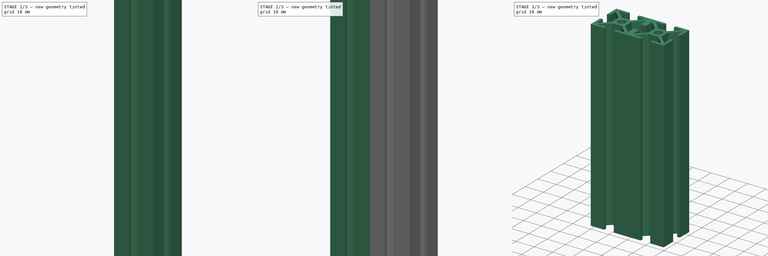
[diagram: build sequence overview — one tinted view per stage of 3, left to right]
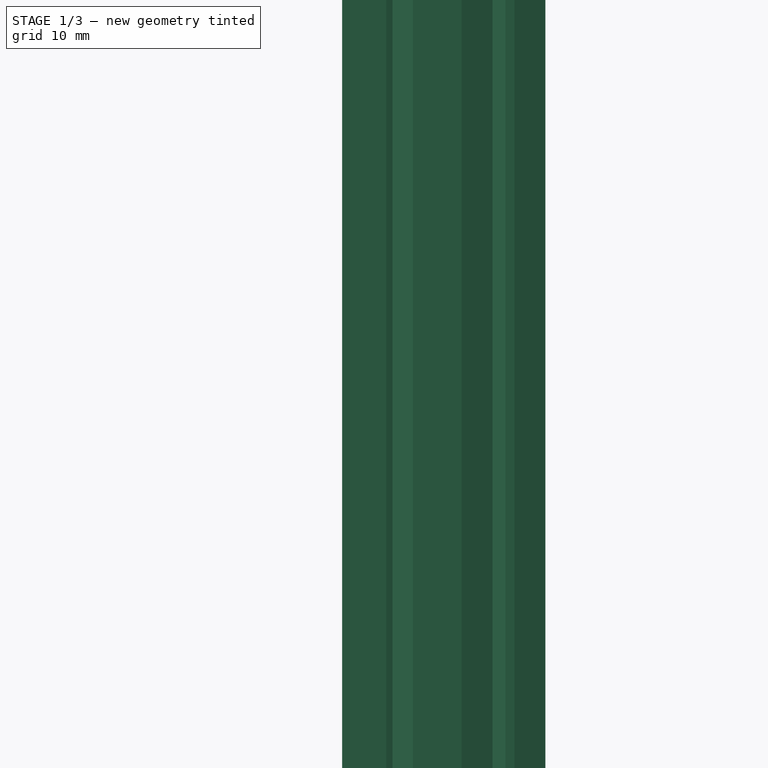
[diagram: stage 1 of 3 — iso view after this stage's code; geometry added in this stage tinted green]
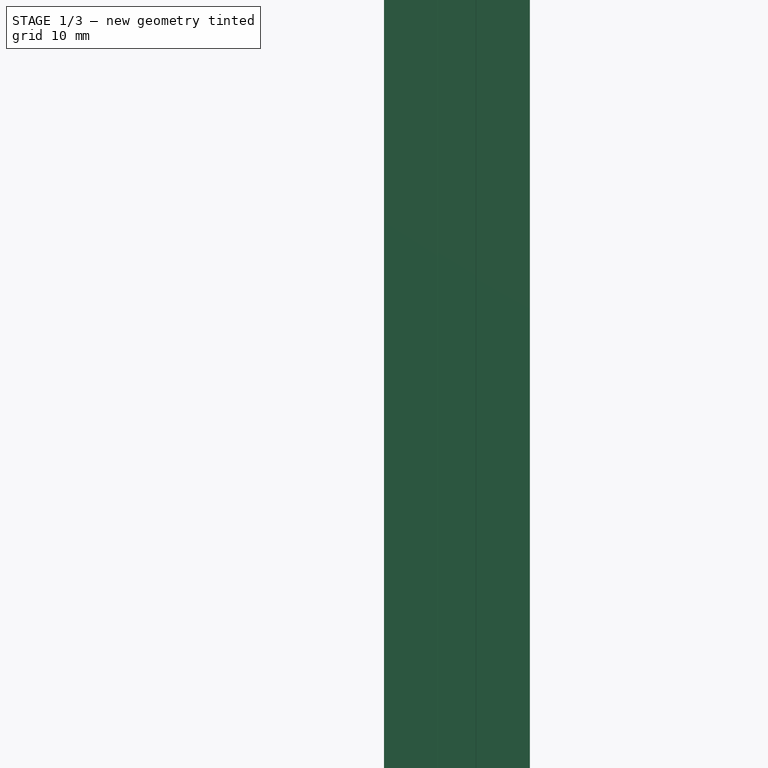
[diagram: stage 1 of 3 — front view after this stage's code; geometry added in this stage tinted green]
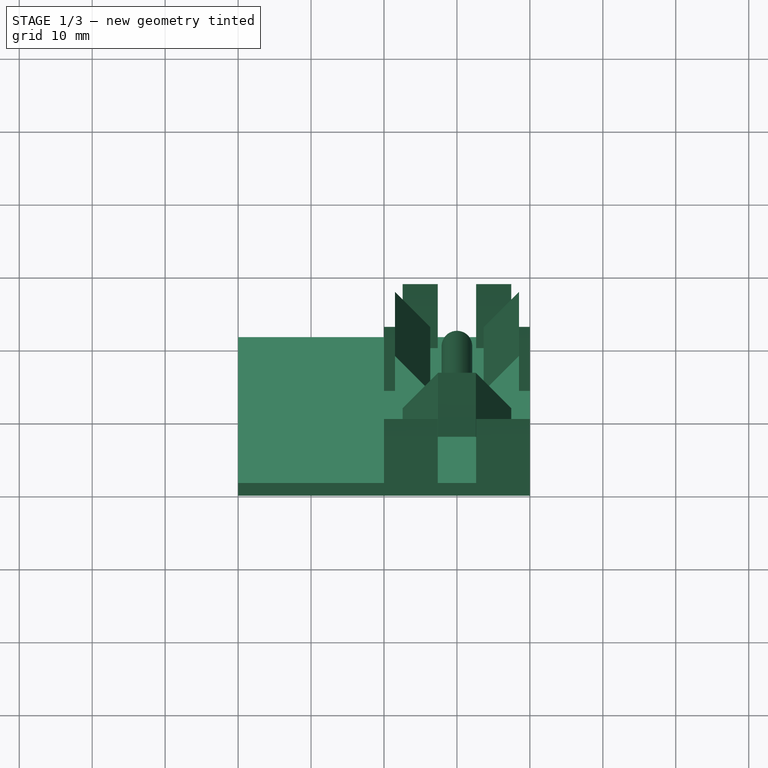
[diagram: stage 1 of 3 — top view after this stage's code; geometry added in this stage tinted green]
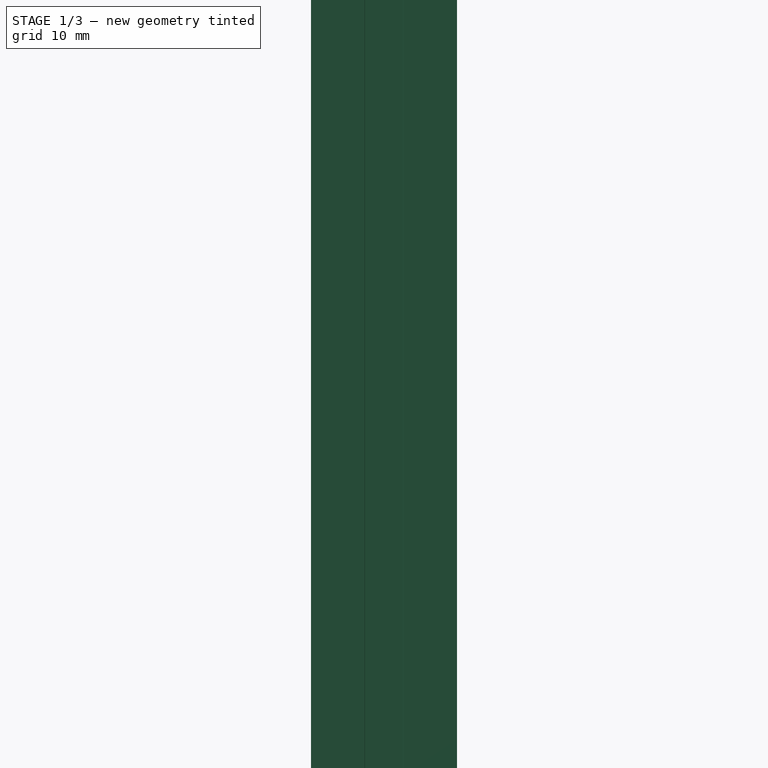
[diagram: stage 1 of 3 — right view after this stage's code; geometry added in this stage tinted green]
FCSTD DOCUMENT  (FreeCAD 0.15R4671 (Git))
Label: 20series-1x2_100mm
License: All rights reserved
LicenseURL: http://en.wikipedia.org/wiki/All_rights_reserved
objects: App::FeaturePython×3, Part::Extrusion×2, Sketcher::SketchObject×1, Part::Fuse×1, Part::Box×1, Part::MultiCommon×1
note: 6 computed .brp shape members not serialized (recipe doc carries the construction recipe); baked Part::Feature solids carry a one-line shape summary decoded from their .brp

FEATURE [App::FeaturePython] planeConstraint  # a2plus constraint (typed FeaturePython)
  Object1 = Extrude001
  Object2 = Extrude
  SubElement1 = Face39
  SubElement2 = Face39
  Type = plane
  directionConstraint = 0
  offset = 0
FEATURE [App::FeaturePython] planeConstraint001  # a2plus constraint (typed FeaturePython)
  Object1 = Extrude001
  Object2 = Extrude
  SubElement1 = Face33
  SubElement2 = Face23
  Type = plane
  directionConstraint = 0
  offset = 0
FEATURE [App::FeaturePython] planeConstraint002  # a2plus constraint (typed FeaturePython)
  Object1 = Extrude
  Object2 = Extrude001
  SubElement1 = Face24
  SubElement2 = Face32
  Type = plane
  directionConstraint = 0
  offset = 0
FEATURE [Part::Extrusion] Extrude001
  Base = -> Sketch
  Dir = (0,0,610)
  Placement = pos=(20,0,0) rot=(0,0,1;0rad)
  Solid = true
FEATURE [Part::Box] Box  label="Cube"
  Height = 100
  Length = 40
  Width = 20
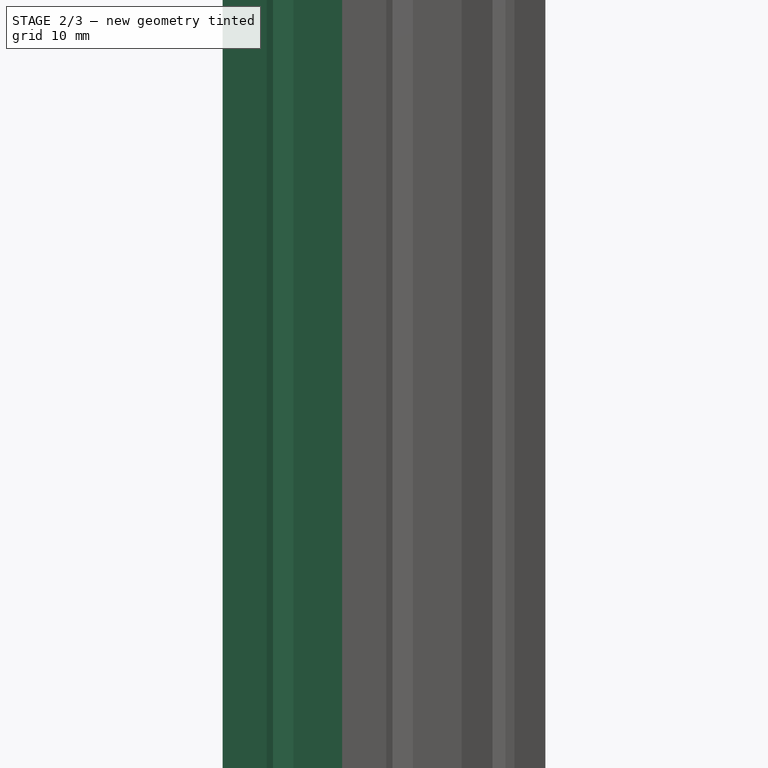
[diagram: stage 2 of 3 — iso view after this stage's code; geometry added in this stage tinted green]
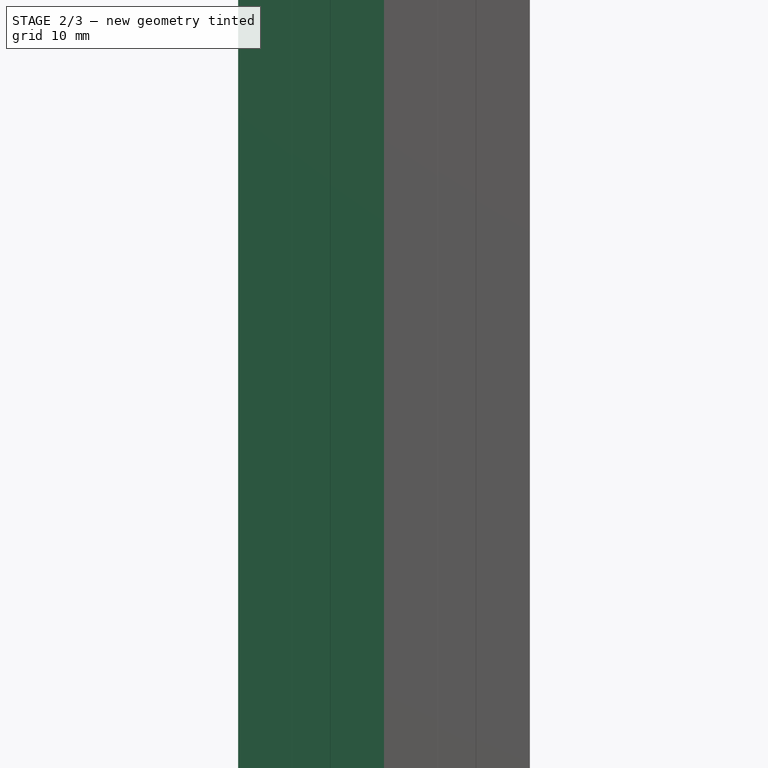
[diagram: stage 2 of 3 — front view after this stage's code; geometry added in this stage tinted green]
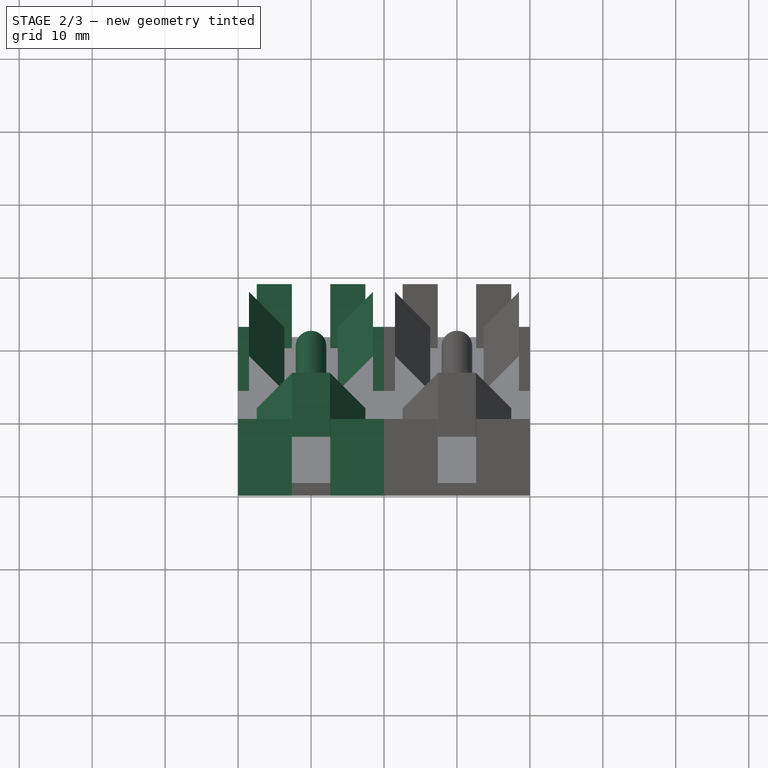
[diagram: stage 2 of 3 — top view after this stage's code; geometry added in this stage tinted green]
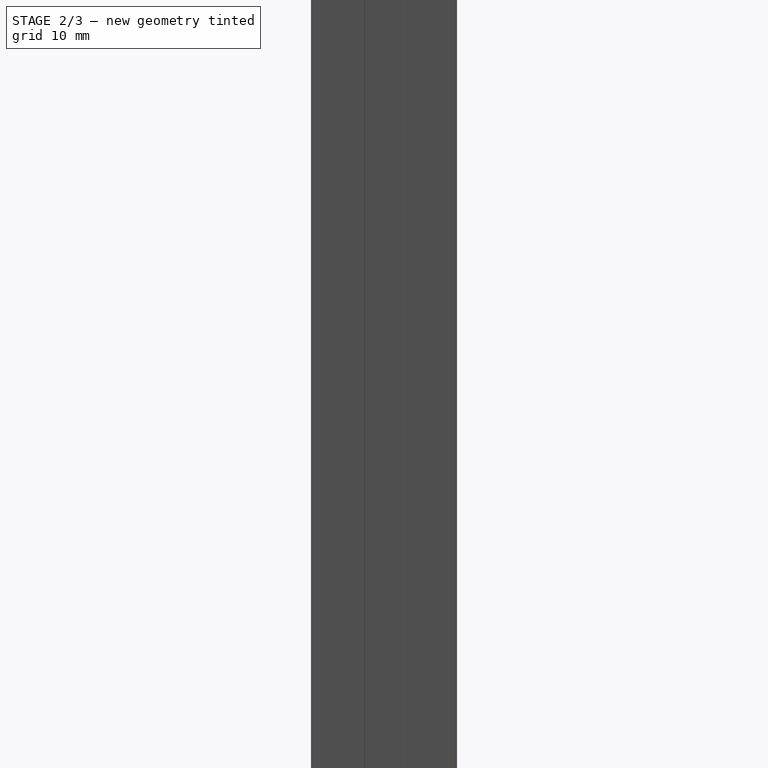
[diagram: stage 2 of 3 — right view after this stage's code; geometry added in this stage tinted green]
FEATURE [Sketcher::SketchObject] Sketch  label="20seriesProfile"
  sketch-geometry (93):
    g0: LineSegment [constr] StartX=0 StartY=0 StartZ=0 EndX=20 EndY=0 EndZ=0
    g1: LineSegment [constr] StartX=20 StartY=0 StartZ=0 EndX=20 EndY=20 EndZ=0
    g2: LineSegment [constr] StartX=20 StartY=20 StartZ=0 EndX=0 EndY=20 EndZ=0
    g3: LineSegment [constr] StartX=0 StartY=20 StartZ=0 EndX=0 EndY=0 EndZ=0
    g4: LineSegment [constr] StartX=0 StartY=0 StartZ=0 EndX=20 EndY=20 EndZ=0
    g5: LineSegment [constr] StartX=0 StartY=20 StartZ=0 EndX=20 EndY=0 EndZ=0
    g6: GeomPoint [constr] X=0 Y=10 Z=0
    g7: GeomPoint [constr] X=20 Y=10 Z=0
    g8: GeomPoint [constr] X=10 Y=20 Z=0
    g9: GeomPoint [constr] X=10 Y=0 Z=0
    g10: LineSegment [constr] StartX=0 StartY=10 StartZ=0 EndX=20 EndY=10 EndZ=0
    g11: LineSegment [constr] StartX=10 StartY=20 StartZ=0 EndX=10 EndY=0 EndZ=0
    g12: GeomPoint [constr] X=10 Y=10 Z=0
    g13: Circle CenterX=10 CenterY=10 CenterZ=0 NormalX=0 NormalY=0 NormalZ=1 Radius=2.095
    g14: LineSegment StartX=6.34 StartY=6.34 StartZ=0 EndX=13.66 EndY=6.34 EndZ=0
    g15: LineSegment StartX=13.66 StartY=6.34 StartZ=0 EndX=13.66 EndY=13.66 EndZ=0
    g16: LineSegment StartX=13.66 StartY=13.66 StartZ=0 EndX=6.34 EndY=13.66 EndZ=0
    g17: LineSegment StartX=6.34 StartY=13.66 StartZ=0 EndX=6.34 EndY=6.34 EndZ=0
    g18: LineSegment [constr] StartX=1.5 StartY=1.5 StartZ=0 EndX=18.5 EndY=1.5 EndZ=0
    g19: LineSegment [constr] StartX=18.5 StartY=1.5 StartZ=0 EndX=18.5 EndY=18.5 EndZ=0
    g20: LineSegment [constr] StartX=18.5 StartY=18.5 StartZ=0 EndX=1.5 EndY=18.5 EndZ=0
    g21: LineSegment [constr] StartX=1.5 StartY=18.5 StartZ=0 EndX=1.5 EndY=1.5 EndZ=0
    g22: LineSegment [constr] StartX=1.5 StartY=1.5 StartZ=0 EndX=0 EndY=1.5 EndZ=0
    g23: LineSegment [constr] StartX=2.56066 StartY=1.5 StartZ=0 EndX=7.40066 EndY=6.34 EndZ=0
    g24: LineSegment [constr] StartX=6.34 StartY=7.40066 StartZ=0 EndX=1.5 EndY=2.56066 EndZ=0
    g25: LineSegment [constr] StartX=1.5 StartY=2.56066 StartZ=0 EndX=2.56066 EndY=1.5 EndZ=0
    g26: LineSegment [constr] StartX=17.4393 StartY=1.5 StartZ=0 EndX=12.5993 EndY=6.34 EndZ=0
    g27: LineSegment [constr] StartX=13.66 StartY=7.40066 StartZ=0 EndX=18.5 EndY=2.56066 EndZ=0
    g28: LineSegment [constr] StartX=2.56066 StartY=18.5 StartZ=0 EndX=7.40066 EndY=13.66 EndZ=0
    g29: LineSegment [constr] StartX=1.5 StartY=17.4393 StartZ=0 EndX=6.34 EndY=12.5993 EndZ=0
    g30: LineSegment [constr] StartX=2.56066 StartY=18.5 StartZ=0 EndX=1.5 EndY=17.4393 EndZ=0
    g31: LineSegment [constr] StartX=18.5 StartY=2.56066 StartZ=0 EndX=17.4393 EndY=1.5 EndZ=0
    g32: LineSegment [constr] StartX=17.4393 StartY=18.5 StartZ=0 EndX=12.5993 EndY=13.66 EndZ=0
    g33: LineSegment [constr] StartX=13.66 StartY=12.5993 StartZ=0 EndX=18.5 EndY=17.4393 EndZ=0
    g34: LineSegment [constr] StartX=18.5 StartY=17.4393 StartZ=0 EndX=17.4393 EndY=18.5 EndZ=0
    g35: LineSegment [constr] StartX=0 StartY=7.37 StartZ=0 EndX=1.5 EndY=7.37 EndZ=0
    g36: LineSegment [constr] StartX=1.5 StartY=12.63 StartZ=0 EndX=0 EndY=12.63 EndZ=0
    g37: LineSegment [constr] StartX=0.75 StartY=12.63 StartZ=0 EndX=0.75 EndY=7.37 EndZ=0
    g38: GeomPoint [constr] X=0.75 Y=10 Z=0
    g39: LineSegment [constr] StartX=18.5 StartY=12.63 StartZ=0 EndX=20 EndY=12.63 EndZ=0
    g40: LineSegment [constr] StartX=18.5 StartY=7.37 StartZ=0 EndX=20 EndY=7.37 EndZ=0
    g41: LineSegment [constr] StartX=7.37 StartY=1.5 StartZ=0 EndX=7.37 EndY=0 EndZ=0
    g42: LineSegment [constr] StartX=12.63 StartY=1.5 StartZ=0 EndX=12.63 EndY=0 EndZ=0
    g43: LineSegment [constr] StartX=7.37 StartY=0.75 StartZ=0 EndX=12.63 EndY=0.75 EndZ=0
    g44: LineSegment [constr] StartX=7.37 StartY=20 StartZ=0 EndX=7.37 EndY=18.5 EndZ=0
    g45: LineSegment [constr] StartX=12.63 StartY=20 StartZ=0 EndX=12.63 EndY=18.5 EndZ=0
    g46: GeomPoint [constr] X=7.37 Y=19.25 Z=0
    g47: LineSegment [constr] StartX=7.37 StartY=19.25 StartZ=0 EndX=12.63 EndY=19.25 EndZ=0
    g48: GeomPoint [constr] X=19.25 Y=12.63 Z=0
    g49: LineSegment [constr] StartX=19.25 StartY=12.63 StartZ=0 EndX=19.25 EndY=7.37 EndZ=0
    g50: GeomPoint [constr] X=19.25 Y=10 Z=0
    g51: GeomPoint [constr] X=10 Y=19.25 Z=0
    g52: GeomPoint [constr] X=10 Y=0.75 Z=0
    g53: LineSegment StartX=0 StartY=7.37 StartZ=0 EndX=0 EndY=0 EndZ=0
    g54: LineSegment StartX=0 StartY=0 StartZ=0 EndX=7.37 EndY=0 EndZ=0
    g55: LineSegment StartX=7.37 StartY=0 StartZ=0 EndX=7.37 EndY=1.5 EndZ=0
    g56: LineSegment StartX=7.37 StartY=1.5 StartZ=0 EndX=2.56066 EndY=1.5 EndZ=0
    g57: LineSegment StartX=2.56066 StartY=1.5 StartZ=0 EndX=7.40066 EndY=6.34 EndZ=0
    g58: LineSegment StartX=7.40066 StartY=6.34 StartZ=0 EndX=6.34 EndY=6.34 EndZ=0
    g59: LineSegment StartX=6.34 StartY=6.34 StartZ=0 EndX=6.34 EndY=7.40066 EndZ=0
    g60: LineSegment StartX=6.34 StartY=7.40066 StartZ=0 EndX=1.5 EndY=2.56066 EndZ=0
    g61: LineSegment StartX=1.5 StartY=2.56066 StartZ=0 EndX=1.5 EndY=7.37 EndZ=0
    g62: LineSegment StartX=1.5 StartY=7.37 StartZ=0 EndX=0 EndY=7.37 EndZ=0
    g63: LineSegment StartX=20 StartY=7.37 StartZ=0 EndX=20 EndY=0 EndZ=0
    g64: LineSegment StartX=20 StartY=0 StartZ=0 EndX=12.63 EndY=0 EndZ=0
    g65: LineSegment StartX=12.63 StartY=0 StartZ=0 EndX=12.63 EndY=1.5 EndZ=0
    g66: LineSegment StartX=12.63 StartY=1.5 StartZ=0 EndX=17.4393 EndY=1.5 EndZ=0
    g67: LineSegment StartX=17.4393 StartY=1.5 StartZ=0 EndX=12.5993 EndY=6.34 EndZ=0
    g68: LineSegment StartX=12.5993 StartY=6.34 StartZ=0 EndX=13.66 EndY=6.34 EndZ=0
    g69: LineSegment StartX=13.66 StartY=6.34 StartZ=0 EndX=13.66 EndY=7.40066 EndZ=0
    g70: LineSegment StartX=13.66 StartY=7.40066 StartZ=0 EndX=18.5 EndY=2.56066 EndZ=0
    g71: LineSegment StartX=18.5 StartY=2.56066 StartZ=0 EndX=18.5 EndY=7.37 EndZ=0
    g72: LineSegment StartX=18.5 StartY=7.37 StartZ=0 EndX=20 EndY=7.37 EndZ=0
    g73: LineSegment StartX=1.5 StartY=12.63 StartZ=0 EndX=1.5 EndY=17.4393 EndZ=0
    g74: LineSegment StartX=1.5 StartY=17.4393 StartZ=0 EndX=6.34 EndY=12.5993 EndZ=0
    g75: LineSegment StartX=6.34 StartY=12.5993 StartZ=0 EndX=6.34 EndY=13.66 EndZ=0
    g76: LineSegment StartX=6.34 StartY=13.66 StartZ=0 EndX=7.40066 EndY=13.66 EndZ=0
    g77: LineSegment StartX=7.40066 StartY=13.66 StartZ=0 EndX=2.56066 EndY=18.5 EndZ=0
    g78: LineSegment StartX=2.56066 StartY=18.5 StartZ=0 EndX=7.37 EndY=18.5 EndZ=0
    g79: LineSegment StartX=7.37 StartY=18.5 StartZ=0 EndX=7.37 EndY=20 EndZ=0
    g80: LineSegment StartX=7.37 StartY=20 StartZ=0 EndX=0 EndY=20 EndZ=0
    g81: LineSegment StartX=0 StartY=20 StartZ=0 EndX=0 EndY=12.63 EndZ=0
    g82: LineSegment StartX=0 StartY=12.63 StartZ=0 EndX=1.5 EndY=12.63 EndZ=0
    g83: LineSegment StartX=20 StartY=12.63 StartZ=0 EndX=20 EndY=20 EndZ=0
    g84: LineSegment StartX=20 StartY=20 StartZ=0 EndX=12.63 EndY=20 EndZ=0
    g85: LineSegment StartX=12.63 StartY=20 StartZ=0 EndX=12.63 EndY=18.5 EndZ=0
    g86: LineSegment StartX=12.63 StartY=18.5 StartZ=0 EndX=17.4393 EndY=18.5 EndZ=0
    g87: LineSegment StartX=17.4393 StartY=18.5 StartZ=0 EndX=12.5993 EndY=13.66 EndZ=0
    g88: LineSegment StartX=12.5993 StartY=13.66 StartZ=0 EndX=13.66 EndY=13.66 EndZ=0
    g89: LineSegment StartX=13.66 StartY=13.66 StartZ=0 EndX=13.66 EndY=12.5993 EndZ=0
    g90: LineSegment StartX=13.66 StartY=12.5993 StartZ=0 EndX=18.5 EndY=17.4393 EndZ=0
    g91: LineSegment StartX=18.5 StartY=17.4393 StartZ=0 EndX=18.5 EndY=12.63 EndZ=0
    g92: LineSegment StartX=18.5 StartY=12.63 StartZ=0 EndX=20 EndY=12.63 EndZ=0
  constraints (233):
    c: Coincident(g0,g1)
    c: Coincident(g1,g2)
    c: Coincident(g2,g3)
    c: Coincident(g3,g0)
    c: Horizontal(g0)
    c: Vertical(g1)
    c: Coincident(g0,g-1)
    c: Equal(g0,g3)
    c: DistanceX(g0) = 20
    c: Coincident(g4,g-1)
    c: Coincident(g4,g1)
    c: Coincident(g5,g2)
    c: Coincident(g5,g0)
    c: PointOnObject(g8,g2)
    c: Symmetric(g0,g0,g9)
    c: Symmetric(g1,g1,g7)
    c: Symmetric(g2,g2,g8)
    c: Symmetric(g3,g3,g6)
    c: Horizontal(g10)
    c: Coincident(g10,g7)
    c: Coincident(g10,g6)
    c: PointOnObject(g11,g2)
    c: PointOnObject(g11,g0)
    c: Vertical(g11)
    c: Coincident(g11,g9)
    c: PointOnObject(g12,g11)
    c: Symmetric(g10,g10,g12)
    c: Radius(g13) = 2.095
    c: Coincident(g13,g12)
    c: Coincident(g14,g15)
    c: Coincident(g15,g16)
    c: Coincident(g16,g17)
    c: Coincident(g17,g14)
    c: Horizontal(g14)
    c: Horizontal(g16)
    c: Vertical(g15)
    c: Vertical(g17)
    c: PointOnObject(g14,g4)
    c: PointOnObject(g15,g4)
    c: PointOnObject(g14,g5)
    c: DistanceX(g14) = 7.32
    c: Coincident(g18,g19)
    c: Coincident(g19,g20)
    c: Coincident(g20,g21)
    c: Coincident(g21,g18)
    c: Horizontal(g18)
    c: Vertical(g21)
    c: PointOnObject(g18,g4)
    c: PointOnObject(g19,g4)
    c: Equal(g21,g18)
    c: PointOnObject(g20,g5)
    c: Coincident(g22,g18)
    c: PointOnObject(g22,g3)
    c: Horizontal(g22)
    c: DistanceX(g22) = -1.5
    c: PointOnObject(g23,g14)
    c: Parallel(g23,g4)
    c: PointOnObject(g24,g17)
    c: PointOnObject(g24,g21)
    c: Parallel(g24,g4)
    c: PointOnObject(g23,g18)
    c: Coincident(g25,g24)
    c: Coincident(g25,g23)
    c: Perpendicular(g4,g25)
    c: Distance(g25) = 1.5
    c: PointOnObject(g26,g18)
    c: PointOnObject(g26,g14)
    c: PointOnObject(g27,g15)
    c: PointOnObject(g27,g19)
    c: PointOnObject(g28,g20)
    c: PointOnObject(g28,g16)
    c: PointOnObject(g29,g21)
    c: PointOnObject(g29,g17)
    c: Parallel(g29,g28)
    c: Parallel(g28,g27)
    c: Parallel(g27,g26)
    c: Parallel(g26,g5)
    c: Coincident(g30,g28)
    c: Coincident(g29,g30)
    c: Coincident(g31,g27)
    c: Coincident(g31,g26)
    c: Perpendicular(g5,g31)
    c: Perpendicular(g5,g30)
    c: Equal(g31,g30)
    c: Equal(g30,g25)
    c: PointOnObject(g32,g20)
    c: PointOnObject(g32,g16)
    c: PointOnObject(g33,g15)
    c: PointOnObject(g33,g19)
    c: Coincident(g34,g33)
    c: Parallel(g33,g32)
    c: Parallel(g32,g4)
    c: Coincident(g34,g32)
    c: Perpendicular(g4,g34)
    c: Equal(g34,g25)
    c: PointOnObject(g35,g3)
    c: PointOnObject(g35,g21)
    c: Horizontal(g35)
    c: PointOnObject(g36,g21)
    c: Horizontal(g36)
    c: Vertical(g37)
    c: Symmetric(g37,g37,g38)
    c: PointOnObject(g38,g10)
    c: PointOnObject(g37,g36)
    c: PointOnObject(g37,g35)
    c: Symmetric(g36,g36,g37)
    c: PointOnObject(g36,g3)
    c: DistanceY(g36,g35) = -5.26
    c: PointOnObject(g39,g19)
    c: PointOnObject(g39,g1)
    c: Horizontal(g39)
    c: PointOnObject(g40,g19)
    c: PointOnObject(g40,g1)
    c: Horizontal(g40)
    c: PointOnObject(g41,g18)
    c: PointOnObject(g41,g0)
    c: Vertical(g41)
    c: PointOnObject(g42,g18)
    c: PointOnObject(g42,g0)
    c: Vertical(g42)
    c: PointOnObject(g43,g41)
    c: PointOnObject(g43,g42)
    c: Horizontal(g43)
    c: Symmetric(g41,g41,g43)
    c: PointOnObject(g44,g2)
    c: PointOnObject(g44,g20)
    c: Vertical(g44)
    c: Vertical(g45)
    c: PointOnObject(g46,g44)
    c: Coincident(g47,g46)
    c: PointOnObject(g47,g45)
    c: Horizontal(g47)
    c: Symmetric(g44,g44,g46)
    c: PointOnObject(g48,g39)
    c: Coincident(g49,g48)
    c: PointOnObject(g49,g40)
    c: Vertical(g49)
    c: Symmetric(g39,g39,g48)
    c: PointOnObject(g50,g49)
    c: PointOnObject(g50,g10)
    c: PointOnObject(g51,g47)
    c: Symmetric(g47,g47,g51)
    c: PointOnObject(g51,g11)
    c: Equal(g47,g49)
    c: Equal(g49,g43)
    c: PointOnObject(g52,g43)
    c: Symmetric(g43,g43,g52)
    c: PointOnObject(g52,g11)
    c: Equal(g37,g47)
    c: Symmetric(g49,g49,g50)
    c: PointOnObject(g45,g2)
    c: PointOnObject(g45,g20)
    c: Coincident(g35,g53)
    c: Coincident(g53,g-1)
    c: Coincident(g53,g54)
    c: Coincident(g54,g41)
    c: Coincident(g54,g55)
    c: Coincident(g55,g41)
    c: Coincident(g55,g56)
    c: Coincident(g56,g23)
    c: Coincident(g56,g57)
    c: Coincident(g57,g23)
    c: Coincident(g57,g58)
    c: Coincident(g58,g14)
    c: Coincident(g58,g59)
    c: Coincident(g59,g24)
    c: Coincident(g59,g60)
    c: Coincident(g60,g24)
    c: Coincident(g60,g61)
    c: Coincident(g61,g35)
    c: Coincident(g61,g62)
    c: Coincident(g62,g53)
    c: Coincident(g40,g63)
    c: Coincident(g63,g0)
    c: Coincident(g63,g64)
    c: Coincident(g64,g42)
    c: Coincident(g64,g65)
    c: Coincident(g65,g42)
    c: Coincident(g65,g66)
    c: Coincident(g66,g26)
    c: Coincident(g66,g67)
    c: Coincident(g67,g26)
    c: Coincident(g67,g68)
    c: Coincident(g68,g14)
    c: Coincident(g68,g69)
    c: Coincident(g69,g27)
    c: Coincident(g69,g70)
    c: Coincident(g70,g27)
    c: Coincident(g70,g71)
    c: Coincident(g71,g40)
    c: Coincident(g71,g72)
    c: Coincident(g72,g63)
    c: Coincident(g36,g73)
    c: Coincident(g73,g29)
    c: Coincident(g73,g74)
    c: Coincident(g74,g29)
    c: Coincident(g74,g75)
    c: Coincident(g75,g16)
    c: Coincident(g75,g76)
    c: Coincident(g76,g28)
    c: Coincident(g76,g77)
    c: Coincident(g77,g28)
    c: Coincident(g77,g78)
    c: Coincident(g78,g44)
    c: Coincident(g78,g79)
    c: Coincident(g79,g44)
    c: Coincident(g79,g80)
    c: Coincident(g80,g2)
    c: Coincident(g80,g81)
    c: Coincident(g81,g36)
    c: Coincident(g81,g82)
    c: Coincident(g82,g73)
    c: Coincident(g39,g83)
    c: Coincident(g83,g1)
    c: Coincident(g83,g84)
    c: Coincident(g84,g45)
    c: Coincident(g84,g85)
    c: Coincident(g85,g45)
    c: Coincident(g85,g86)
    c: Coincident(g86,g32)
    c: Horizontal(g86)
    c: Coincident(g86,g87)
    c: Coincident(g87,g32)
    c: Coincident(g87,g88)
    c: Coincident(g88,g15)
    c: Coincident(g88,g89)
    c: Coincident(g89,g90)
    c: Coincident(g90,g33)
    c: Coincident(g90,g91)
    c: Coincident(g91,g39)
    c: Coincident(g91,g92)
    c: Coincident(g92,g83)
    c: Coincident(g89,g33)
FEATURE [Part::Extrusion] Extrude
  Base = -> Sketch
  Dir = (0,0,610)
  Solid = true
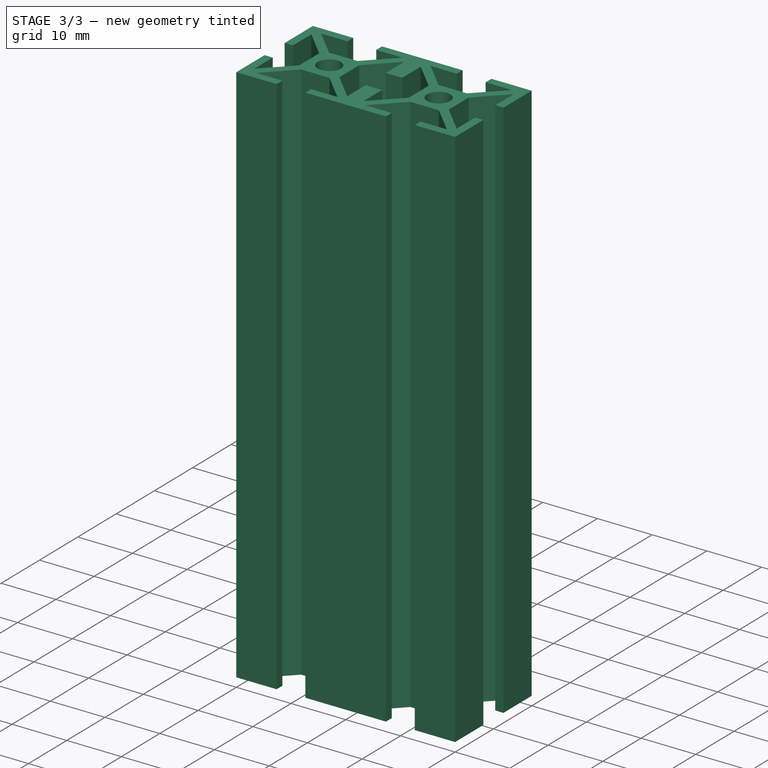
[diagram: stage 3 of 3 — iso view after this stage's code; geometry added in this stage tinted green]
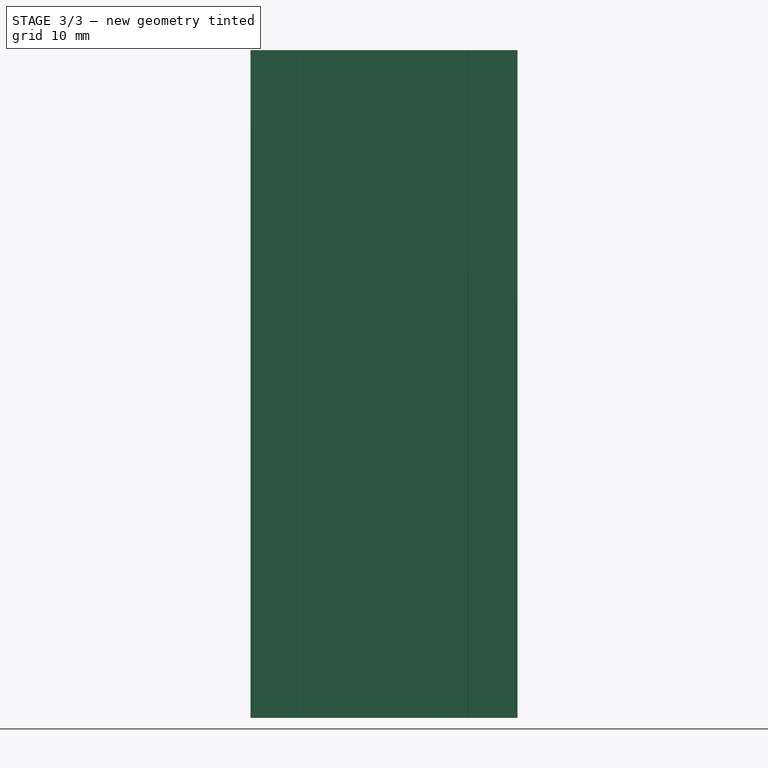
[diagram: stage 3 of 3 — front view after this stage's code; geometry added in this stage tinted green]
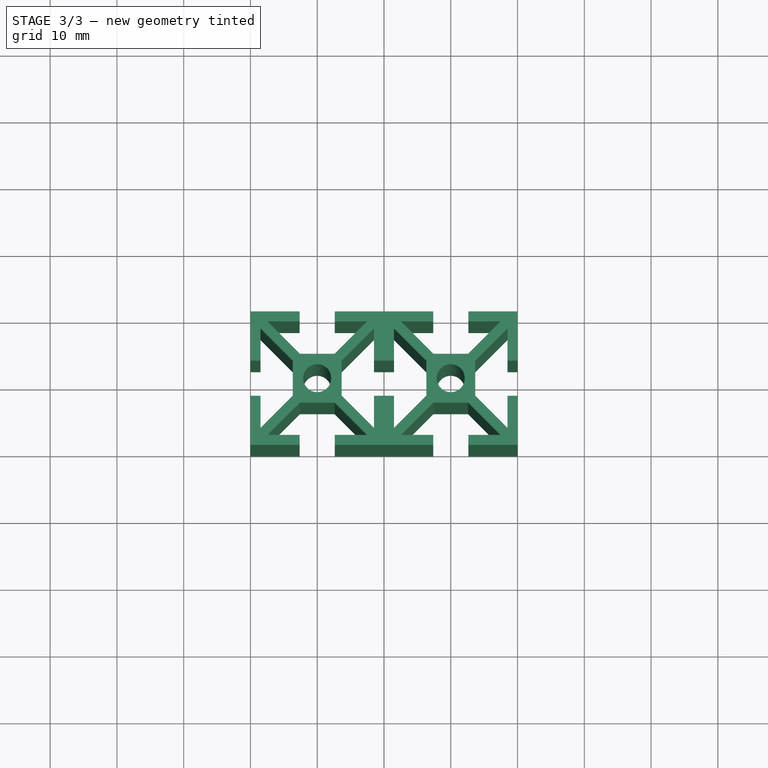
[diagram: stage 3 of 3 — top view after this stage's code; geometry added in this stage tinted green]
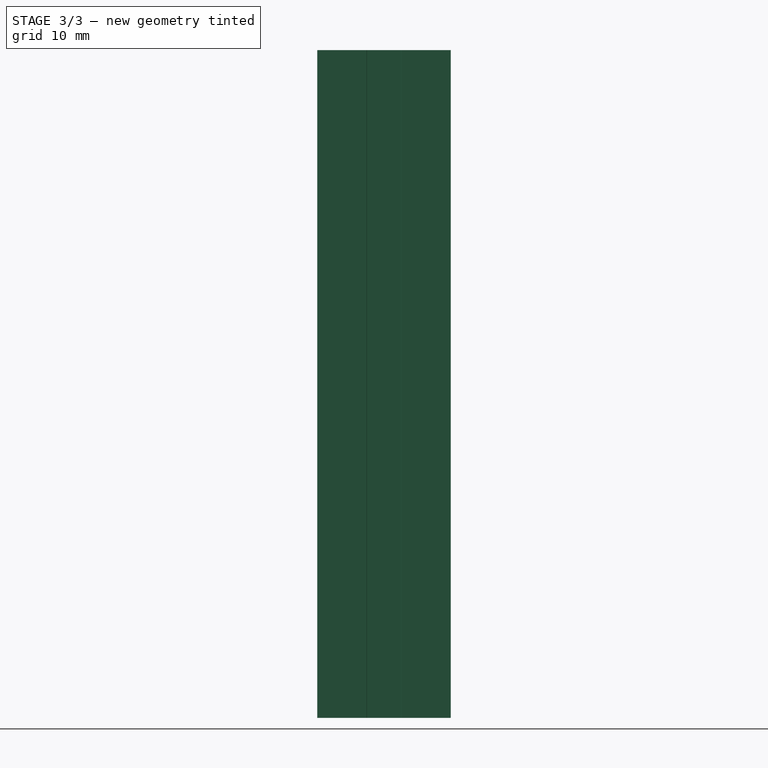
[diagram: stage 3 of 3 — right view after this stage's code; geometry added in this stage tinted green]
FEATURE [Part::Fuse] Fusion
  Base = -> Extrude
  Tool = -> Extrude001
FEATURE [Part::MultiCommon] Common
  Shapes = -> [Fusion,Box]
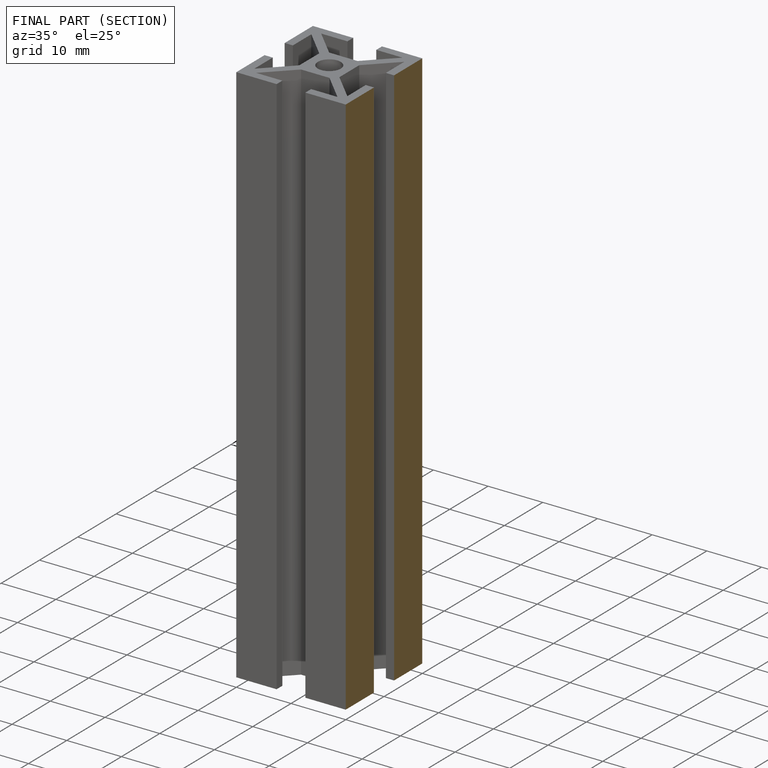
[diagram: finished part — half-section view (interior)]
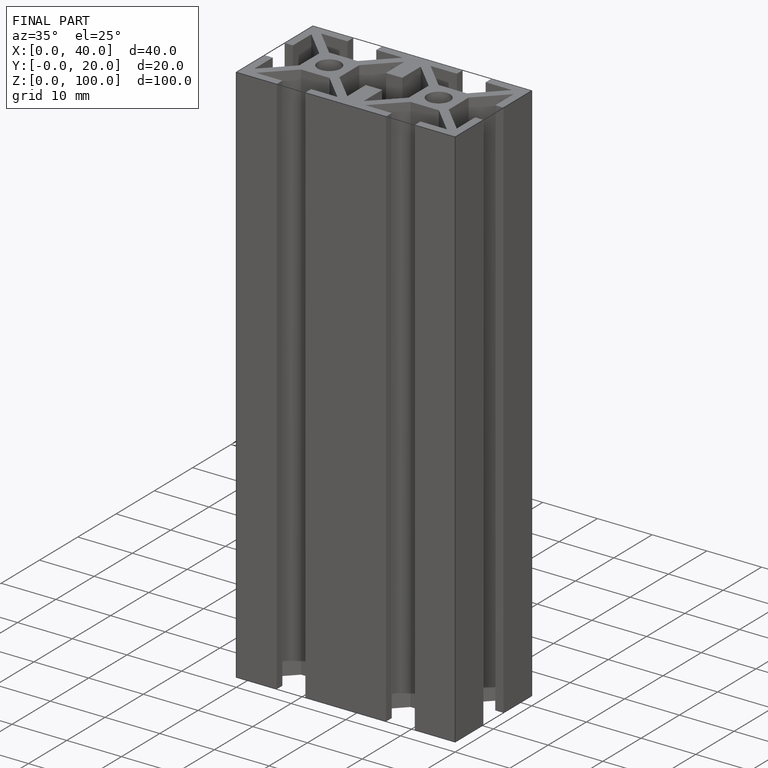
[diagram: finished part — iso view with bounding-box wireframe]
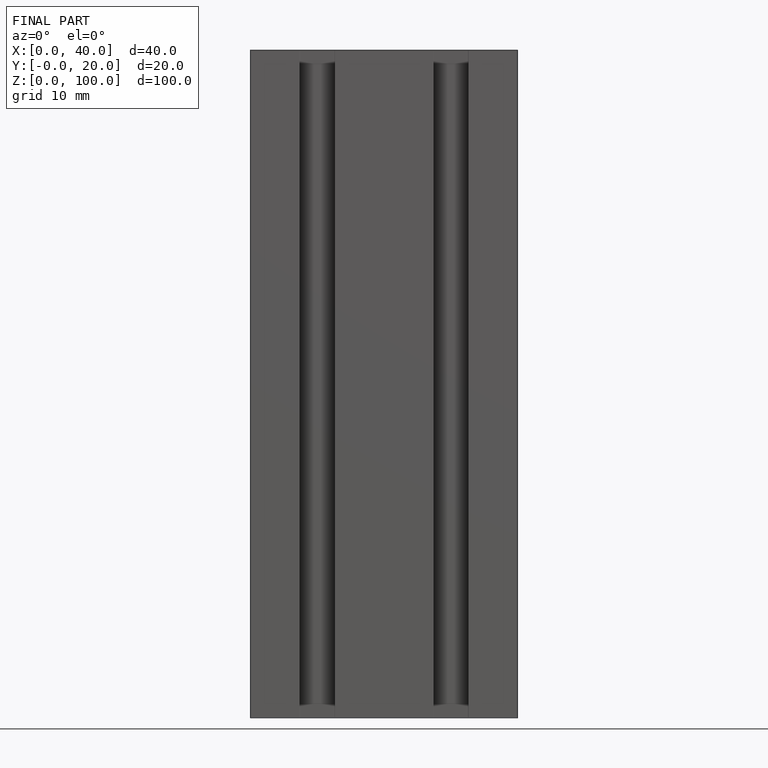
[diagram: finished part — front view with bounding-box wireframe]
